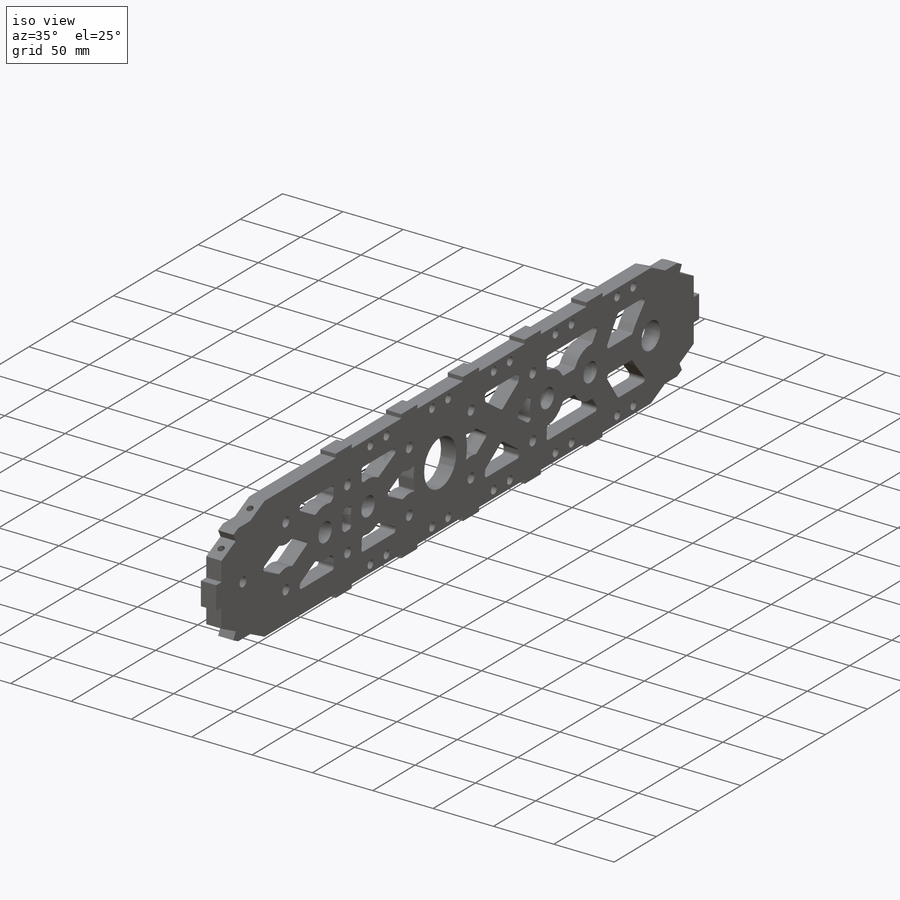
[diagram: iso view]
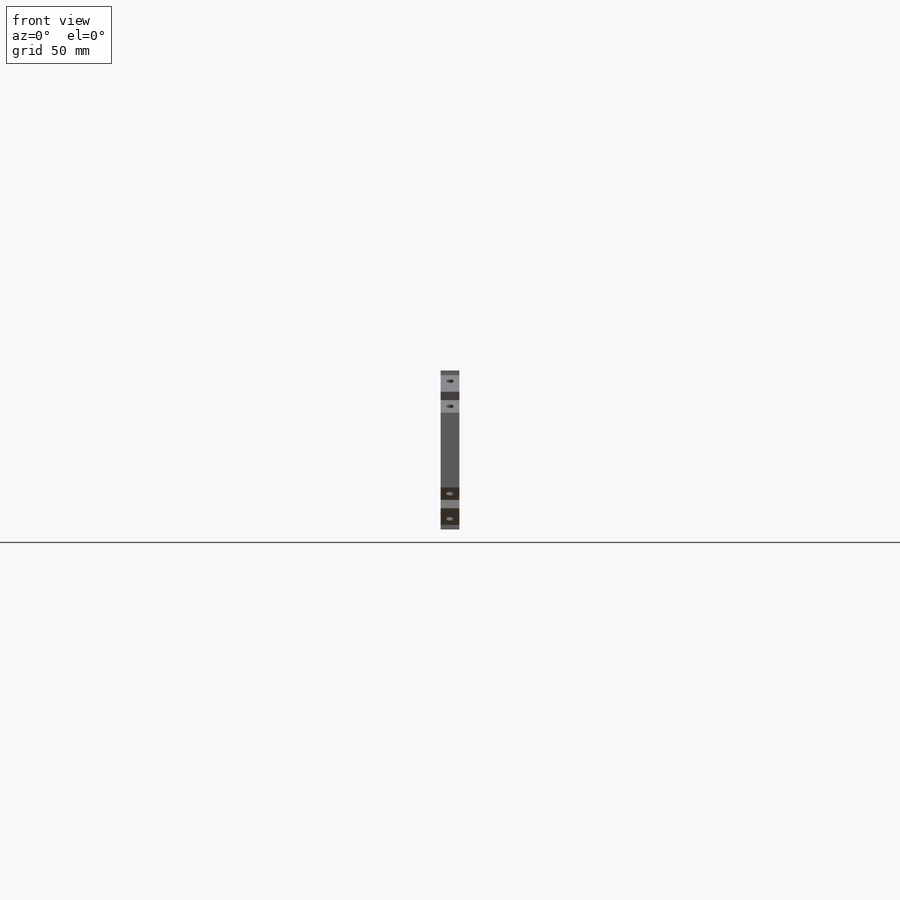
[diagram: front view]
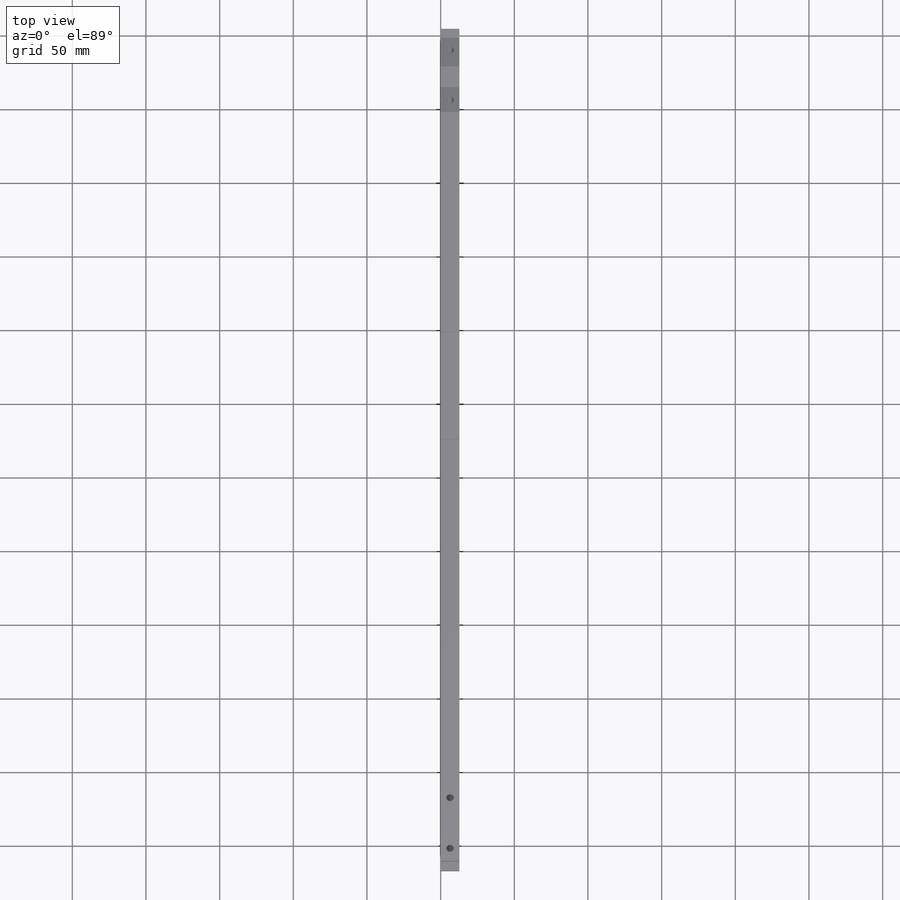
[diagram: top view]
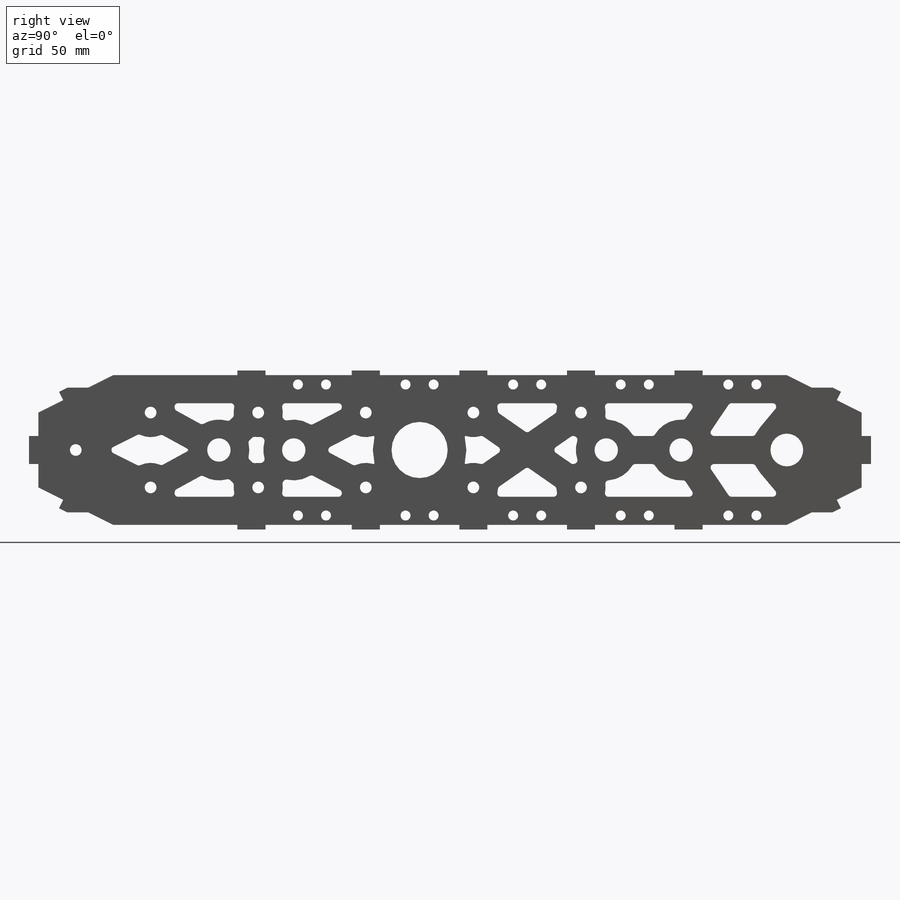
[diagram: right view]
SOLIDWORKS PART (.sldprt)
format: sldprt  version: not decoded by parser v0  size: 1,315,840 bytes
history: native  units: mm
features: sketch x25, hole x7, extrude x6, cut_extrude x5, mirror x2, material x1, fillet x1 (+13 scaffold rows collapsed)
feature tree (60):
  scaffold x13  (default folders/planes/origin — collapsed)
  material  "6061-T6 (SS)"
  sketch  "Sketch1"  dims[c1.D1=~9.285877mm c1.D3=~12.882042mm c1.D4=15.875mm c1.D5=101.6mm c1.D9=50.8mm c1.D10=67.31mm c1.D11=79.502mm c1.D12=46.736mm c2.D1=38.1mm c2.D2=50.8mm c2.D3=71.755mm c2.D6=254.0mm c2.D7=38.1mm c2.D8=38.1mm]
  extrude  "Boss-Extrude1"  Depth=12.7mm
  hole  "3/8-16 Tapped Hole1"  Diameter=7.9375mm Depth=23.876mm
  sketch  "Sketch8"  dims[c1.D5=~19.464755mm c1.D1=25.4mm c1.D2=31.75mm c1.D3=25.4mm c1.D4=25.4mm c2.D5=50.8mm c2.D6=50.8mm]
  sketch  "Sketch7"  dims[hole-wizard template sketch: 47 standard entries collapsed; hole parameters kept: c15.Tap Drill Depth=23.876mm c15.D3=~14.816244mm c15.Drill Angle=118.0deg]
  sketch  "Sketch10"
  cut_extrude  "Cut-Extrude3"  [1 undecoded]
  sketch  "Sketch11"
  extrude  "Boss-Extrude2"  Depth=12.7mm
  sketch  "Sketch12"  dims[D1=25.4mm]
  cut_extrude  "Cut-Extrude4"  [1 undecoded]
  mirror  "Mirror1"
  sketch  "Sketch13"
  extrude  "Boss-Extrude3"  [1 undecoded]
  sketch  "Sketch14"  dims[D1=~15.132758mm]
  cut_extrude  "Cut-Extrude5"  [1 undecoded]
  hole  "3/8-16 Tapped Hole2"  Diameter=7.9375mm Depth=23.876mm
  sketch  "Sketch16"
  sketch  "Sketch15"  dims[hole-wizard template sketch: 47 standard entries collapsed; hole parameters kept: c15.Tap Drill Depth=23.876mm c15.D3=~14.816244mm c15.Drill Angle=118.0deg]
  sketch  "Sketch17"  dims[D1=~76.352179mm]
  cut_extrude  "Cut-Extrude6"  [1 undecoded]
  hole  "1/4 Clearance Hole1"  Diameter=6.7564mm Depth=12.70005mm
  sketch  "Sketch20"  dims[c1.D1=9.525mm c1.D2=6.35mm c1.D3=19.05mm c2.D1=9.525mm c2.D2=6.35mm]
  sketch  "Sketch19"  dims[hole-wizard template sketch: 60 standard entries collapsed; hole parameters kept: c18.Thru Hole Depth=~12.70005mm]
  sketch  "Sketch21"  dims[c1.D1=~19.075008mm c1.D2=~19.185379mm c2.D1=~19.075008mm c2.D2=~20.121251mm c3.D1=~19.075008mm c3.D2=~13.804114mm c4.D1=~19.075008mm c4.D2=~14.973954mm c5.D1=~19.075008mm c5.D2=~22.010098mm c6.D1=19.05mm c6.D2=3.175mm c6.D3=98.425mm]
  extrude  "Boss-Extrude4"  [1 undecoded]
  mirror  "Mirror2"
  sketch  "Sketch22"  dims[c1.D1=~29.004824mm c1.D2=~11.043868mm c2.D1=~29.004824mm c2.D2=~12.065415mm c3.D1=6.35mm c3.D2=19.05mm c3.D3=~23.027262mm]
  extrude  "Boss-Extrude5"  [1 undecoded]
  hole  "1/4-20 Tapped Hole1"  Diameter=5.1054mm Depth=22.86mm
  sketch  "Sketch24"
  sketch  "Sketch23"  dims[hole-wizard template sketch: 50 standard entries collapsed; hole parameters above]
  hole  "1/4-20 Tapped Hole2"  Diameter=5.1054mm Depth=22.86mm
  sketch  "Sketch26"
  sketch  "Sketch25"  dims[hole-wizard template sketch: 50 standard entries collapsed; hole parameters above]
  hole  "1/4-20 Tapped Hole3"  Diameter=5.1054mm Depth=22.86mm
  sketch  "Sketch28"
  sketch  "Sketch27"  dims[hole-wizard template sketch: 50 standard entries collapsed; hole parameters above]
  hole  "1/4-20 Tapped Hole4"  Diameter=5.1054mm Depth=22.86mm
  sketch  "Sketch30"
  sketch  "Sketch29"  dims[hole-wizard template sketch: 50 standard entries collapsed; hole parameters above]
  sketch  "Sketch31"  dims[c1.D2=12.7mm c1.D3=~26.819115mm c1.D5=~47.650742mm c1.D7=~34.78804mm c1.D9=~6.429375mm c1.D1=19.05mm c2.D3=9.525mm c2.D4=9.525mm c2.D5=9.525mm c2.D6=9.525mm c2.D7=9.525mm c2.D8=9.525mm c2.D9=9.525mm c2.D10=9.525mm]
  cut_extrude  "Cut-Extrude7"  [1 undecoded]
  fillet  "Fillet1"  Radius=2.38125mm
  sketch  "Sketch32"  dims[D1=4.7625mm]
  extrude  "Boss-Extrude6"  [1 undecoded]
decode coverage: 27 of 46 modeling features carry decoded parameters
note: ~ marks probable driven/reference dimensions
note: 9 parameter values undecoded
summary: no parameter record found for 9 features; Diameter pulled from absorbed wizard sketch
note: suppression state not decoded; provenance and decode notes live in map.json
